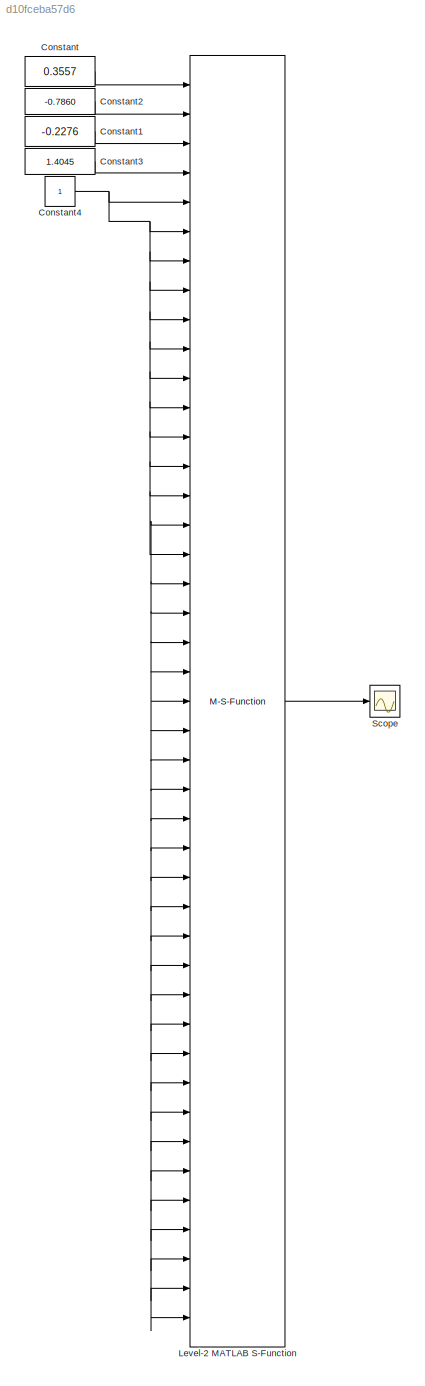
MODEL slx_d10fceba57d6
KIND model
CONFIG AbsTol = auto
CONFIG EnableMultiTasking = off
CONFIG FixedStep = auto
CONFIG MaxStep = auto
CONFIG MinStep = auto
CONFIG RelTol = 1e-3
CONFIG SampleTimeConstraint = Unconstrained
CONFIG SolverName = VariableStepAuto
CONFIG StartTime = 0.0
CONFIG StopTime = 1.0
BLOCK [Constant] Constant
  Value = 0.3557
BLOCK [Constant] Constant1
  Value = -0.2276
BLOCK [Constant] Constant2
  Value = -0.7860
BLOCK [Constant] Constant3
  Value = 1.4045
BLOCK [Constant] Constant4
BLOCK [M-S-Function] Level-2 MATLAB S-Function
  FunctionName = use_onnx
  Ports = [43, 1]
BLOCK [Scope] Scope
  Floating = off
  NumInputPorts = 1
  Ports = [1]
  ScopeSpecificationString = Simulink.scopes.TimeScopeBlockCfg('CurrentConfiguration', extmgr.ConfigurationSet(extmgr.Configuration('Core','General UI',true),extmgr.Configuration('Core','Source UI',true),extmgr.Configuration('Sources','WiredSimulink',true),extmgr.Configuration('Visuals','Time Domain',true,'SerializedDisplays',{struct('MinYLimReal','-0.3668','MaxYLimReal','-0.1668','YLabelReal','','MinYLimMag','0.00000','MaxYL...<+1341ch>
LINE Constant1:1 -> Level-2 MATLAB S-Function:3
LINE Constant2:1 -> Level-2 MATLAB S-Function:2
LINE Constant3:1 -> Level-2 MATLAB S-Function:4
NET Constant4:1 -> Level-2 MATLAB S-Function:10, Level-2 MATLAB S-Function:11, Level-2 MATLAB S-Function:12, Level-2 MATLAB S-Function:13, Level-2 MATLAB S-Function:14, Level-2 MATLAB S-Function:15, Level-2 MATLAB S-Function:16, Level-2 MATLAB S-Function:17, Level-2 MATLAB S-Function:18, Level-2 MATLAB S-Function:19, Level-2 MATLAB S-Function:20, Level-2 MATLAB S-Function:21, Level-2 MATLAB S-Function:22, Level-2 MATLAB S-Function:23, Level-2 MATLAB S-Function:24, Level-2 MATLAB S-Function:25, Level-2 MATLAB S-Function:26, Level-2 MATLAB S-Function:27, Level-2 MATLAB S-Function:28, Level-2 MATLAB S-Function:29, Level-2 MATLAB S-Function:30, Level-2 MATLAB S-Function:31, Level-2 MATLAB S-Function:32, Level-2 MATLAB S-Function:33, Level-2 MATLAB S-Function:34, Level-2 MATLAB S-Function:35, Level-2 MATLAB S-Function:36, Level-2 MATLAB S-Function:37, Level-2 MATLAB S-Function:38, Level-2 MATLAB S-Function:39, Level-2 MATLAB S-Function:40, Level-2 MATLAB S-Function:41, Level-2 MATLAB S-Function:42, Level-2 MATLAB S-Function:43, Level-2 MATLAB S-Function:5, Level-2 MATLAB S-Function:6, Level-2 MATLAB S-Function:7, Level-2 MATLAB S-Function:8, Level-2 MATLAB S-Function:9
LINE Constant:1 -> Level-2 MATLAB S-Function:1
LINE Level-2 MATLAB S-Function:1 -> Scope:1
note: NET lines group one-source signal fan-out (src -> all destinations, sorted); 1:1 wires keep LINE
